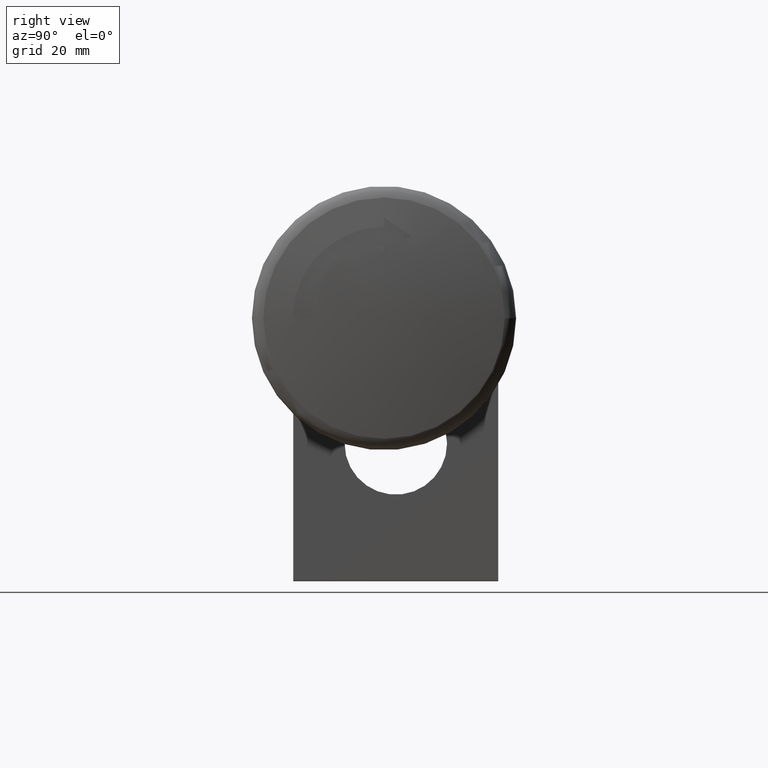
[diagram: clean part render]
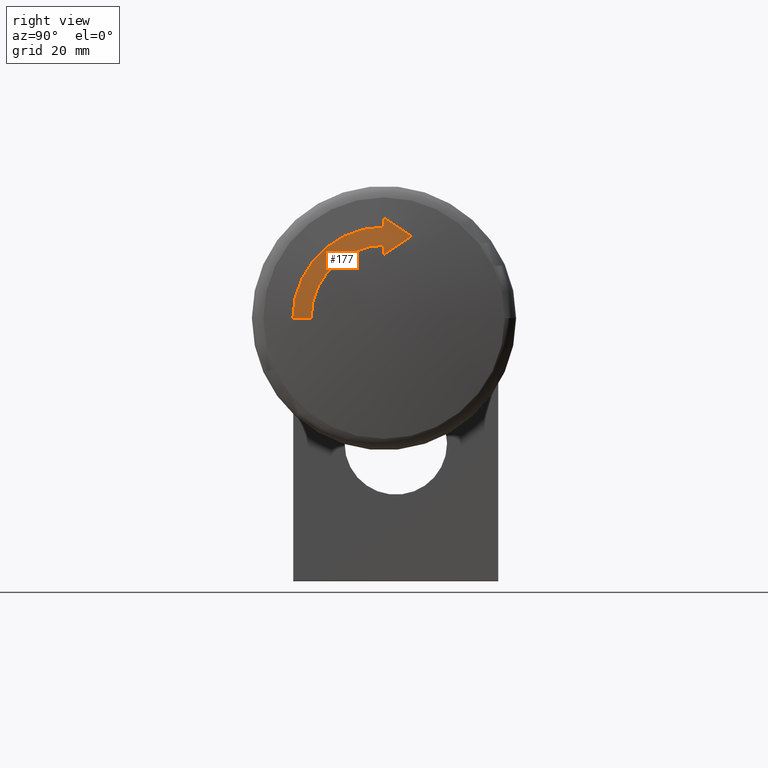
[diagram: same view with one face highlighted and labeled with its STEP entity id]
A machine part, right view. The second image highlights one B-rep face of the part: STEP entity #177.
In plain terms, the highlighted spherical surface has radius 172.5 mm.
Its self-contained STEP definition (entity closure, byte-faithful):
#107=CARTESIAN_POINT('',(-126.590064876781840,-19.495611931044870,0.0));
#108=DIRECTION('',(0.0,0.0,1.0));
#109=DIRECTION('',(1.0,0.0,0.0));
#110=AXIS2_PLACEMENT_3D('',#107,#108,#109);
#111=SPHERICAL_SURFACE('',#110,172.499999999987320);
#112=CARTESIAN_POINT('',(44.746592030009786,-19.495611931044859,20.0));
#113=VERTEX_POINT('',#112);
#114=CARTESIAN_POINT('',(44.501284992215417,-19.495611931044859,22.0));
#115=VERTEX_POINT('',#114);
#116=CARTESIAN_POINT('',(-126.590064876781840,-19.495611931044881,1.009116E-029));
#117=DIRECTION('',(0.0,-1.0,0.0));
#118=DIRECTION('',(0.0,0.0,1.0));
#119=AXIS2_PLACEMENT_3D('',#116,#117,#118);
#120=CIRCLE('',#119,172.499999999987320);
#121=EDGE_CURVE('',#113,#115,#120,.T.);
#122=ORIENTED_EDGE('',*,*,#121,.F.);
#123=CARTESIAN_POINT('',(44.746592030009786,-39.495611931044870,6.535128E-015));
#124=VERTEX_POINT('',#123);
#125=CARTESIAN_POINT('',(44.746592030009786,-19.495611931044870,0.0));
#126=DIRECTION('',(-1.0,0.0,0.0));
#127=DIRECTION('',(0.0,-1.0,0.0));
#128=AXIS2_PLACEMENT_3D('',#125,#126,#127);
#129=CIRCLE('',#128,20.0);
#130=EDGE_CURVE('',#124,#113,#129,.T.);
#131=ORIENTED_EDGE('',*,*,#130,.F.);
#132=CARTESIAN_POINT('',(45.166303272977366,-35.495611931044870,5.228103E-015));
#133=VERTEX_POINT('',#132);
#134=CARTESIAN_POINT('',(-126.590064876781840,-19.495611931044870,0.0));
#135=DIRECTION('',(0.0,0.0,-1.0));
#136=DIRECTION('',(0.0,-1.0,0.0));
#137=AXIS2_PLACEMENT_3D('',#134,#135,#136);
#138=CIRCLE('',#137,172.499999999987320);
#139=EDGE_CURVE('',#133,#124,#138,.T.);
#140=ORIENTED_EDGE('',*,*,#139,.F.);
#141=CARTESIAN_POINT('',(45.166303272977366,-19.495611931044859,16.0));
#142=VERTEX_POINT('',#141);
#143=CARTESIAN_POINT('',(45.166303272977366,-19.495611931044870,0.0));
#144=DIRECTION('',(1.0,0.0,0.0));
#145=DIRECTION('',(0.0,1.0,0.0));
#146=AXIS2_PLACEMENT_3D('',#143,#144,#145);
#147=CIRCLE('',#146,16.0);
#148=EDGE_CURVE('',#142,#133,#147,.T.);
#149=ORIENTED_EDGE('',*,*,#148,.F.);
#150=CARTESIAN_POINT('',(45.340880563518766,-19.495611931044866,14.0));
#151=VERTEX_POINT('',#150);
#152=CARTESIAN_POINT('',(-126.590064876781840,-19.495611931044870,1.305360E-030));
#153=DIRECTION('',(0.0,-1.0,0.0));
#154=DIRECTION('',(0.0,0.0,1.0));
#155=AXIS2_PLACEMENT_3D('',#152,#153,#154);
#156=CIRCLE('',#155,172.499999999987320);
#157=EDGE_CURVE('',#151,#142,#156,.T.);
#158=ORIENTED_EDGE('',*,*,#157,.F.);
#159=CARTESIAN_POINT('',(44.863281547239922,-13.495611931044863,18.0));
#160=VERTEX_POINT('',#159);
#161=CARTESIAN_POINT('',(-126.590064876781840,-25.957150392583330,9.692307692307697));
#162=DIRECTION('',(0.0,0.554700196225229,-0.832050294337844));
#163=DIRECTION('',(0.0,-0.832050294337844,-0.554700196225229));
#164=AXIS2_PLACEMENT_3D('',#161,#162,#163);
#165=CIRCLE('',#164,172.106239550759200);
#166=EDGE_CURVE('',#160,#151,#165,.T.);
#167=ORIENTED_EDGE('',*,*,#166,.F.);
#168=CARTESIAN_POINT('',(-126.590064876781840,-9.341765777198706,15.230769230769223));
#169=DIRECTION('',(0.0,0.554700196225230,0.832050294337843));
#170=DIRECTION('',(0.0,0.832050294337843,-0.554700196225230));
#171=AXIS2_PLACEMENT_3D('',#168,#169,#170);
#172=CIRCLE('',#171,171.526012828721410);
#173=EDGE_CURVE('',#115,#160,#172,.T.);
#174=ORIENTED_EDGE('',*,*,#173,.F.);
#175=EDGE_LOOP('',(#122,#131,#140,#149,#158,#167,#174));
#176=FACE_OUTER_BOUND('',#175,.T.);
#177=ADVANCED_FACE('',(#176),#111,.T.);